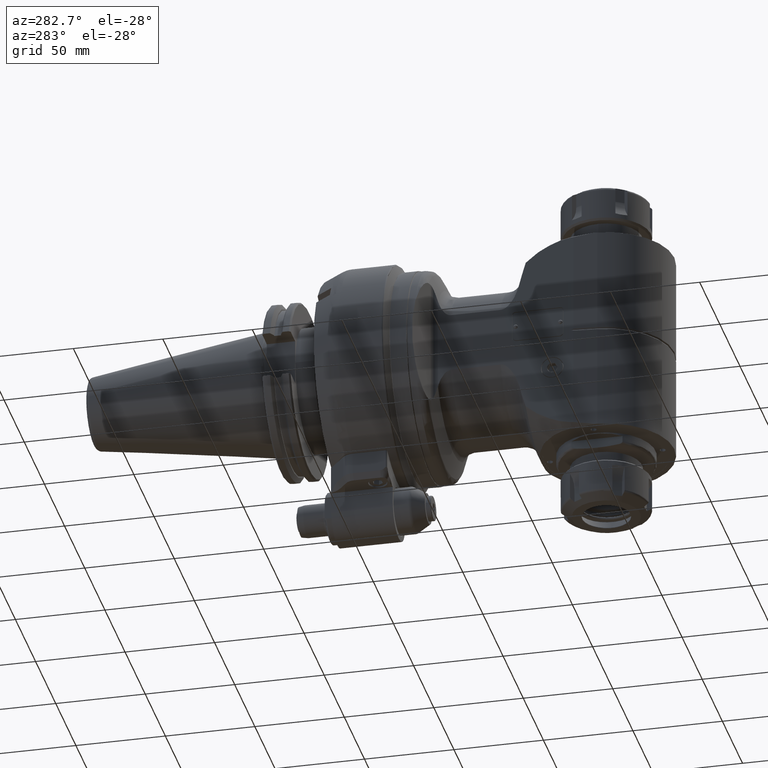
[diagram: clean part render]
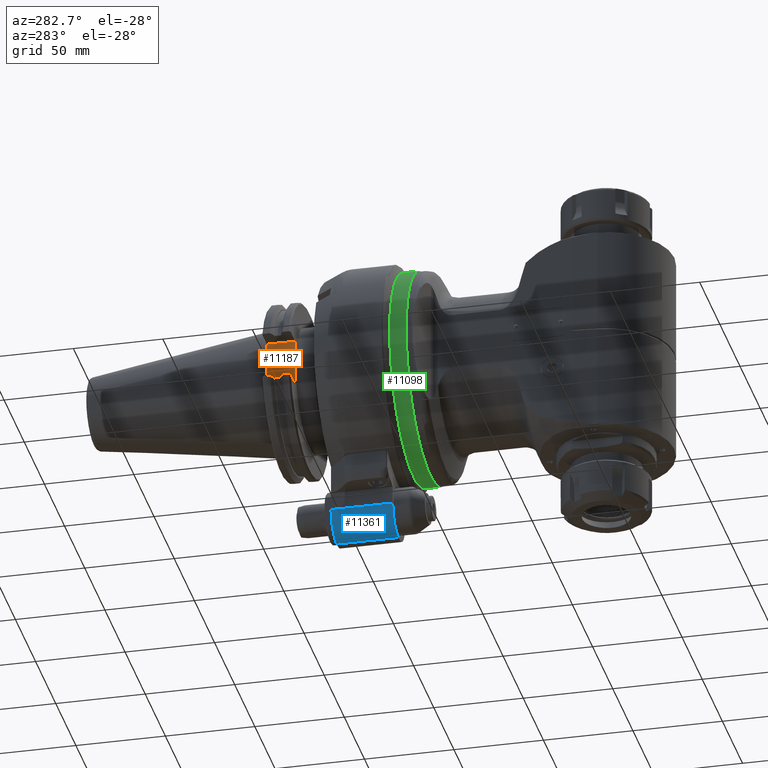
[diagram: same view with three faces highlighted in distinct colors, each labeled with its STEP entity id]
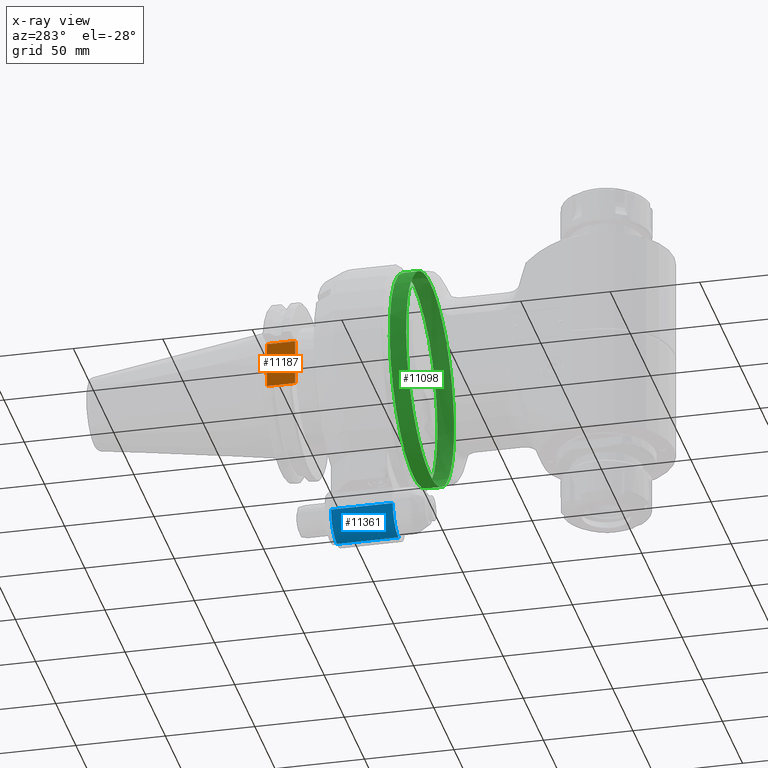
[diagram: x-ray of the same camera — body ghosted, the three highlighted faces saturated]
A machine part, auxiliary view with three faces highlighted in distinct colors.
The next image is the same camera in x-ray (body ghosted, the three faces saturated) — at least one of them is partly hidden behind the body in this view.
Their STEP definitions:

[orange] entity #11187 — the highlighted planar face has unit normal (-1, 0, 0).
#382=B_SPLINE_CURVE_WITH_KNOTS('',3,(#19824,#19825,#19826,#19827,#19828,
#19829,#19830,#19831,#19832,#19833,#19834,#19835,#19836,#19837),
 .UNSPECIFIED.,.F.,.F.,(4,2,2,2,2,2,4),(1.90699350446343,2.14479286639534,
2.4063126781167,2.66783248983806,2.92935230155943,3.19087211328079,3.4286714752127),
 .UNSPECIFIED.);
#929=PLANE('',#12295);
#1458=FACE_OUTER_BOUND('',#2203,.T.);
#2203=EDGE_LOOP('',(#9241,#9242,#9243,#9244,#9245,#9246));
#2874=LINE('',#19761,#3561);
#2880=LINE('',#19791,#3567);
#2886=LINE('',#19809,#3573);
#2889=LINE('',#19818,#3576);
#2890=LINE('',#19823,#3577);
#3561=VECTOR('',#14673,15.875);
#3567=VECTOR('',#14707,25.908);
#3573=VECTOR('',#14723,4.846164962211);
#3576=VECTOR('',#14730,4.846164962211);
#3577=VECTOR('',#14737,15.875);
#5110=VERTEX_POINT('',#19758);
#5111=VERTEX_POINT('',#19760);
#5118=VERTEX_POINT('',#19790);
#5125=VERTEX_POINT('',#19808);
#5128=VERTEX_POINT('',#19815);
#5129=VERTEX_POINT('',#19817);
#6546=EDGE_CURVE('',#5110,#5111,#2874,.T.);
#6560=EDGE_CURVE('',#5111,#5118,#2880,.T.);
#6569=EDGE_CURVE('',#5125,#5110,#2886,.T.);
#6574=EDGE_CURVE('',#5128,#5129,#2889,.T.);
#6577=EDGE_CURVE('',#5118,#5128,#2890,.T.);
#6578=EDGE_CURVE('',#5129,#5125,#382,.T.);
#9241=ORIENTED_EDGE('',*,*,#6574,.F.);
#9242=ORIENTED_EDGE('',*,*,#6577,.F.);
#9243=ORIENTED_EDGE('',*,*,#6560,.F.);
#9244=ORIENTED_EDGE('',*,*,#6546,.F.);
#9245=ORIENTED_EDGE('',*,*,#6569,.F.);
#9246=ORIENTED_EDGE('',*,*,#6578,.F.);
#11187=ADVANCED_FACE('',(#1458),#929,.T.);
#12295=AXIS2_PLACEMENT_3D('',#19822,#14735,#14736);
#14673=DIRECTION('',(0.,-1.,0.));
#14707=DIRECTION('',(0.,0.,-1.));
#14723=DIRECTION('',(0.,0.,1.));
#14730=DIRECTION('',(0.,0.,1.));
#14735=DIRECTION('center_axis',(-1.,0.,0.));
#14736=DIRECTION('ref_axis',(0.,1.,0.));
#14737=DIRECTION('',(0.,1.,0.));
#19758=CARTESIAN_POINT('',(-35.306,73.82499976923,12.954));
#19760=CARTESIAN_POINT('',(-35.306,57.94999976923,12.954));
#19761=CARTESIAN_POINT('',(-35.306,73.82499976923,12.954));
#19790=CARTESIAN_POINT('',(-35.306,57.94999976923,-12.954));
#19791=CARTESIAN_POINT('',(-35.306,57.94999976923,12.954));
#19808=CARTESIAN_POINT('',(-35.306,73.82499976923,8.107835037789));
#19809=CARTESIAN_POINT('',(-35.306,73.82499976923,8.107835037789));
#19815=CARTESIAN_POINT('',(-35.306,73.82499976923,-12.954));
#19817=CARTESIAN_POINT('',(-35.306,73.82499976923,-8.107835037789));
#19818=CARTESIAN_POINT('',(-35.306,73.82499976923,-12.954));
#19822=CARTESIAN_POINT('Origin',(-35.306,56.08092696154,0.1007059482229));
#19823=CARTESIAN_POINT('',(-35.306,57.94999976923,-12.954));
#19824=CARTESIAN_POINT('Ctrl Pts',(-35.306,73.82499976923,-8.1078350377891));
#19825=CARTESIAN_POINT('Ctrl Pts',(-35.306,73.82499976923,-7.31517049801603));
#19826=CARTESIAN_POINT('Ctrl Pts',(-35.306,73.8603009331457,-6.36462833041385));
#19827=CARTESIAN_POINT('Ctrl Pts',(-35.306,73.9421628195024,-4.70224545561438));
#19828=CARTESIAN_POINT('Ctrl Pts',(-35.306,74.0004909064359,-3.7450806212124));
#19829=CARTESIAN_POINT('Ctrl Pts',(-35.306,74.0888517567776,-1.82990717862153));
#19830=CARTESIAN_POINT('Ctrl Pts',(-35.306,74.115252083605,-0.871732705737879));
#19831=CARTESIAN_POINT('Ctrl Pts',(-35.306,74.115252083605,0.871732705737879));
#19832=CARTESIAN_POINT('Ctrl Pts',(-35.306,74.0888517567776,1.82990717862153));
#19833=CARTESIAN_POINT('Ctrl Pts',(-35.306,74.0004909064359,3.7450806212124));
#19834=CARTESIAN_POINT('Ctrl Pts',(-35.306,73.9421628195024,4.70224545561438));
#19835=CARTESIAN_POINT('Ctrl Pts',(-35.306,73.8603009331457,6.36462833041385));
#19836=CARTESIAN_POINT('Ctrl Pts',(-35.306,73.82499976923,7.31517049801603));
#19837=CARTESIAN_POINT('Ctrl Pts',(-35.306,73.82499976923,8.1078350377891));

[blue] entity #11361 — the highlighted cylindrical surface (edge-blend (fillet) strip) has radius 14 mm, axis along (0, -1, 0).
#1632=FACE_OUTER_BOUND('',#2397,.T.);
#2397=EDGE_LOOP('',(#10195,#10196,#10197,#10198));
#3108=LINE('',#21244,#3795);
#3109=LINE('',#21246,#3796);
#3795=VECTOR('',#15657,34.5);
#3796=VECTOR('',#15660,34.5);
#4330=CIRCLE('',#12517,14.);
#4388=CIRCLE('',#12623,14.);
#5333=VERTEX_POINT('',#20725);
#5334=VERTEX_POINT('',#20727);
#5433=VERTEX_POINT('',#21138);
#5434=VERTEX_POINT('',#21140);
#6877=EDGE_CURVE('',#5333,#5334,#4330,.T.);
#7020=EDGE_CURVE('',#5433,#5434,#4388,.T.);
#7060=EDGE_CURVE('',#5433,#5334,#3108,.T.);
#7061=EDGE_CURVE('',#5333,#5434,#3109,.T.);
#10195=ORIENTED_EDGE('',*,*,#7061,.T.);
#10196=ORIENTED_EDGE('',*,*,#7020,.F.);
#10197=ORIENTED_EDGE('',*,*,#7060,.T.);
#10198=ORIENTED_EDGE('',*,*,#6877,.F.);
#10763=CYLINDRICAL_SURFACE('',#12647,14.);
#11361=ADVANCED_FACE('',(#1632),#10763,.T.);
#12517=AXIS2_PLACEMENT_3D('',#20728,#15302,#15303);
#12623=AXIS2_PLACEMENT_3D('',#21141,#15585,#15586);
#12647=AXIS2_PLACEMENT_3D('',#21245,#15658,#15659);
#15302=DIRECTION('center_axis',(0.,1.,0.));
#15303=DIRECTION('ref_axis',(0.,0.,-1.));
#15585=DIRECTION('center_axis',(0.,-1.,0.));
#15586=DIRECTION('ref_axis',(-1.,0.,0.));
#15657=DIRECTION('',(0.,1.,0.));
#15658=DIRECTION('center_axis',(0.,-1.,0.));
#15659=DIRECTION('ref_axis',(0.,0.,-1.));
#15660=DIRECTION('',(0.,-1.,0.));
#20725=CARTESIAN_POINT('',(-1.,42.499999769231,-96.25));
#20727=CARTESIAN_POINT('',(-15.,42.499999769231,-82.25));
#20728=CARTESIAN_POINT('Origin',(-1.,42.499999769231,-82.25));
#21138=CARTESIAN_POINT('',(-15.,7.999999769231,-82.25));
#21140=CARTESIAN_POINT('',(-1.,7.999999769231,-96.25));
#21141=CARTESIAN_POINT('Origin',(-1.,7.999999769231,-82.25));
#21244=CARTESIAN_POINT('',(-15.,7.999999769231,-82.25));
#21245=CARTESIAN_POINT('Origin',(-1.,33.999999769231,-82.25));
#21246=CARTESIAN_POINT('',(-1.,42.499999769231,-96.25));

[green] entity #11098 — the highlighted cylindrical surface (bore or boss wall) has radius 59.25 mm, axis along (0, -1, -0).
#1369=FACE_OUTER_BOUND('',#2100,.T.);
#2100=EDGE_LOOP('',(#8752,#8753,#8754,#8755));
#2778=LINE('',#18905,#3465);
#3465=VECTOR('',#14279,59.25);
#4139=CIRCLE('',#12121,59.25);
#4140=CIRCLE('',#12123,59.25);
#4955=VERTEX_POINT('',#18901);
#4956=VERTEX_POINT('',#18904);
#6322=EDGE_CURVE('',#4955,#4955,#4139,.T.);
#6323=EDGE_CURVE('',#4955,#4956,#2778,.T.);
#6324=EDGE_CURVE('',#4956,#4956,#4140,.T.);
#8752=ORIENTED_EDGE('',*,*,#6322,.F.);
#8753=ORIENTED_EDGE('',*,*,#6323,.T.);
#8754=ORIENTED_EDGE('',*,*,#6324,.T.);
#8755=ORIENTED_EDGE('',*,*,#6323,.F.);
#10702=CYLINDRICAL_SURFACE('',#12122,59.25);
#11098=ADVANCED_FACE('',(#1369),#10702,.T.);
#12121=AXIS2_PLACEMENT_3D('',#18902,#14275,#14276);
#12122=AXIS2_PLACEMENT_3D('',#18903,#14277,#14278);
#12123=AXIS2_PLACEMENT_3D('',#18906,#14280,#14281);
#14275=DIRECTION('center_axis',(1.,0.,0.));
#14276=DIRECTION('ref_axis',(0.,1.,0.));
#14277=DIRECTION('center_axis',(1.,0.,0.));
#14278=DIRECTION('ref_axis',(0.,1.,0.));
#14279=DIRECTION('',(-1.,0.,0.));
#14280=DIRECTION('center_axis',(1.,0.,0.));
#14281=DIRECTION('ref_axis',(0.,1.,0.));
#18901=CARTESIAN_POINT('',(11.5,-59.25,0.));
#18902=CARTESIAN_POINT('Origin',(11.5,0.,0.));
#18903=CARTESIAN_POINT('Origin',(-325.161824282,0.,0.));
#18904=CARTESIAN_POINT('',(2.20000000000001,-59.25,0.));
#18905=CARTESIAN_POINT('',(-325.161824282,-59.25,-7.25603228494807E-15));
#18906=CARTESIAN_POINT('Origin',(2.20000000000001,0.,0.));